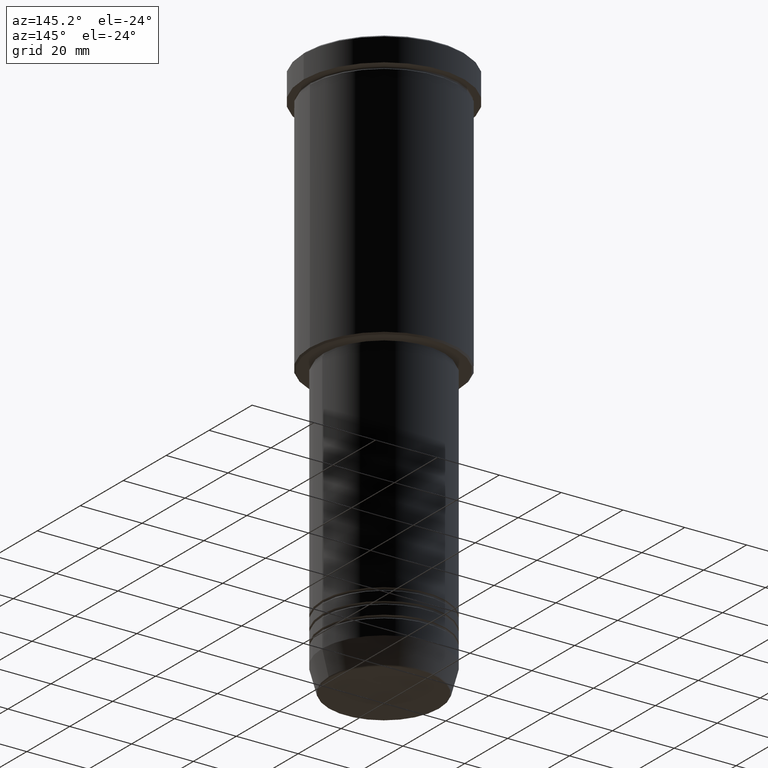
[diagram: clean part render]
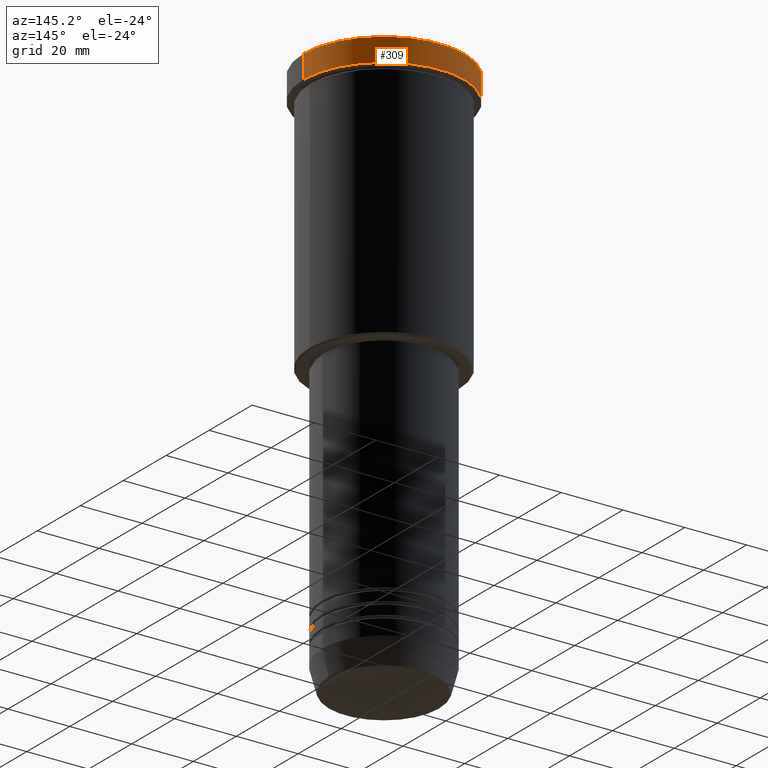
[diagram: same view with one face highlighted and labeled with its STEP entity id]
A machine part, auxiliary view. The second image highlights one B-rep face of the part: STEP entity #309.
In plain terms, the highlighted cylindrical surface (partial cylindrical patch) has radius 26 mm, axis along (-0, -0, 1).
Its self-contained STEP definition (entity closure, byte-faithful):
#10 = LINE ( 'NONE', #1120, #446 ) ;
#20 = AXIS2_PLACEMENT_3D ( 'NONE', #1066, #971, #489 ) ;
#30 = ORIENTED_EDGE ( 'NONE', *, *, #913, .F. ) ;
#35 = EDGE_LOOP ( 'NONE', ( #790, #645, #134, #30 ) ) ;
#123 = DIRECTION ( 'NONE',  ( 0.000000000000000000, 0.000000000000000000, -1.000000000000000000 ) ) ;
#131 = AXIS2_PLACEMENT_3D ( 'NONE', #664, #123, #472 ) ;
#134 = ORIENTED_EDGE ( 'NONE', *, *, #865, .T. ) ;
#149 = CYLINDRICAL_SURFACE ( 'NONE', #1179, 26.00000000000000000 ) ;
#173 = CARTESIAN_POINT ( 'NONE',  ( 26.00000000000000000, 0.000000000000000000, -7.999999999999992895 ) ) ;
#204 = CARTESIAN_POINT ( 'NONE',  ( -26.00000000000000000, 3.184081677783118191E-15, -0.4999999999999970024 ) ) ;
#248 = EDGE_CURVE ( 'NONE', #628, #908, #453, .T. ) ;
#309 = ADVANCED_FACE ( 'NONE', ( #331 ), #149, .T. ) ;
#316 = CARTESIAN_POINT ( 'NONE',  ( 0.000000000000000000, 0.000000000000000000, 0.000000000000000000 ) ) ;
#331 = FACE_OUTER_BOUND ( 'NONE', #35, .T. ) ;
#336 = EDGE_CURVE ( 'NONE', #440, #628, #871, .T. ) ;
#352 = DIRECTION ( 'NONE',  ( -0.000000000000000000, -0.000000000000000000, 1.000000000000000000 ) ) ;
#370 = DIRECTION ( 'NONE',  ( -0.000000000000000000, -0.000000000000000000, 1.000000000000000000 ) ) ;
#401 = VERTEX_POINT ( 'NONE', #993 ) ;
#414 = DIRECTION ( 'NONE',  ( -0.000000000000000000, -0.000000000000000000, 1.000000000000000000 ) ) ;
#440 = VERTEX_POINT ( 'NONE', #173 ) ;
#446 = VECTOR ( 'NONE', #370, 1000.000000000000000 ) ;
#453 = LINE ( 'NONE', #809, #935 ) ;
#472 = DIRECTION ( 'NONE',  ( 1.000000000000000000, 0.000000000000000000, 0.000000000000000000 ) ) ;
#489 = DIRECTION ( 'NONE',  ( 1.000000000000000000, 0.000000000000000000, 0.000000000000000000 ) ) ;
#597 = DIRECTION ( 'NONE',  ( 1.000000000000000000, 0.000000000000000000, 0.000000000000000000 ) ) ;
#628 = VERTEX_POINT ( 'NONE', #724 ) ;
#645 = ORIENTED_EDGE ( 'NONE', *, *, #248, .T. ) ;
#664 = CARTESIAN_POINT ( 'NONE',  ( 0.000000000000000000, 0.000000000000000000, -0.4999999999999970024 ) ) ;
#724 = CARTESIAN_POINT ( 'NONE',  ( -26.00000000000000000, 3.184081677783118191E-15, -7.999999999999992895 ) ) ;
#790 = ORIENTED_EDGE ( 'NONE', *, *, #336, .T. ) ;
#809 = CARTESIAN_POINT ( 'NONE',  ( -26.00000000000000000, 3.184081677783118191E-15, 0.000000000000000000 ) ) ;
#865 = EDGE_CURVE ( 'NONE', #908, #401, #1170, .T. ) ;
#871 = CIRCLE ( 'NONE', #20, 26.00000000000000000 ) ;
#908 = VERTEX_POINT ( 'NONE', #204 ) ;
#913 = EDGE_CURVE ( 'NONE', #440, #401, #10, .T. ) ;
#935 = VECTOR ( 'NONE', #352, 1000.000000000000000 ) ;
#971 = DIRECTION ( 'NONE',  ( -0.000000000000000000, -0.000000000000000000, 1.000000000000000000 ) ) ;
#993 = CARTESIAN_POINT ( 'NONE',  ( 26.00000000000000000, 0.000000000000000000, -0.4999999999999970024 ) ) ;
#1066 = CARTESIAN_POINT ( 'NONE',  ( 0.000000000000000000, 0.000000000000000000, -7.999999999999992895 ) ) ;
#1120 = CARTESIAN_POINT ( 'NONE',  ( 26.00000000000000000, 0.000000000000000000, 0.000000000000000000 ) ) ;
#1170 = CIRCLE ( 'NONE', #131, 26.00000000000000000 ) ;
#1179 = AXIS2_PLACEMENT_3D ( 'NONE', #316, #414, #597 ) ;